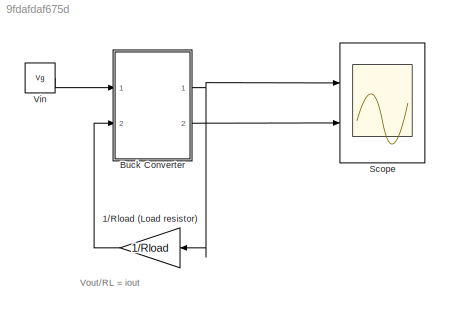
MODEL slx_9fdafdaf675d
KIND model
CONFIG AbsTol = auto
CONFIG FixedStep = auto
CONFIG MaxStep = 1/fs
CONFIG MinStep = auto
CONFIG RelTol = 1/fs
CONFIG SampleTimeConstraint = Unconstrained
CONFIG Solver = ode23tb
CONFIG SolverMode = Auto
CONFIG SolverName = ode23tb
CONFIG StartTime = 0.0
CONFIG StopTime = 0.5
BLOCK [Gain] 1//Rload (Load resistor)
  Gain = 1/Rload
  OutDataTypeStr = Inherit: Inherit via internal rule
  ParamDataTypeStr = Inherit: Inherit via internal rule
  SaturateOnIntegerOverflow = off
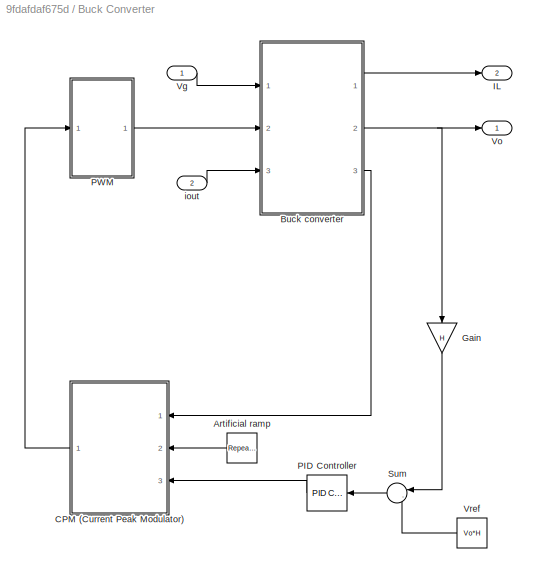
BLOCK [SubSystem] Buck Converter
  Ports = [2, 2]
  RequestExecContextInheritance = off
  Variant = off
BLOCK [Reference] Buck Converter/Artificial ramp  REF=simulink/Sources/Repeating
Sequence
  Ports = [0, 1]
  SourceBlock = simulink/Sources/Repeating\nSequence
  SourceType = Repeating table
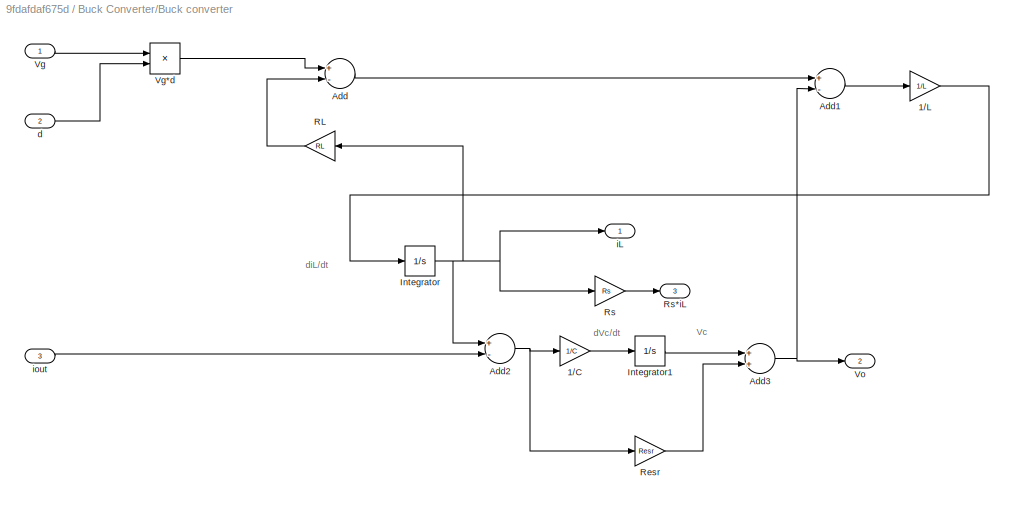
BLOCK [SubSystem] Buck Converter/Buck converter
  Ports = [3, 3]
  RequestExecContextInheritance = off
  Variant = off
BLOCK [Gain] Buck Converter/Buck converter/1//C
  Gain = 1/C
  OutDataTypeStr = Inherit: Inherit via internal rule
  ParamDataTypeStr = Inherit: Inherit via internal rule
  SaturateOnIntegerOverflow = off
BLOCK [Gain] Buck Converter/Buck converter/1//L
  Gain = 1/L
  OutDataTypeStr = Inherit: Inherit via internal rule
  ParamDataTypeStr = Inherit: Inherit via internal rule
  SaturateOnIntegerOverflow = off
BLOCK [Sum] Buck Converter/Buck converter/Add
  InputSameDT = off
  Inputs = +-
  OutDataTypeStr = Inherit: Inherit via internal rule
  Ports = [2, 1]
  SaturateOnIntegerOverflow = off
BLOCK [Sum] Buck Converter/Buck converter/Add1
  InputSameDT = off
  Inputs = +-
  OutDataTypeStr = Inherit: Inherit via internal rule
  Ports = [2, 1]
  SaturateOnIntegerOverflow = off
BLOCK [Sum] Buck Converter/Buck converter/Add2
  InputSameDT = off
  Inputs = +-
  OutDataTypeStr = Inherit: Inherit via internal rule
  Ports = [2, 1]
  SaturateOnIntegerOverflow = off
BLOCK [Sum] Buck Converter/Buck converter/Add3
  InputSameDT = off
  OutDataTypeStr = Inherit: Inherit via internal rule
  Ports = [2, 1]
  SaturateOnIntegerOverflow = off
BLOCK [Integrator] Buck Converter/Buck converter/Integrator
  Ports = [1, 1]
BLOCK [Integrator] Buck Converter/Buck converter/Integrator1
  Ports = [1, 1]
BLOCK [Gain] Buck Converter/Buck converter/RL
  Gain = RL
  OutDataTypeStr = Inherit: Inherit via internal rule
  ParamDataTypeStr = Inherit: Inherit via internal rule
  SaturateOnIntegerOverflow = off
BLOCK [Gain] Buck Converter/Buck converter/Resr
  Gain = Resr
  OutDataTypeStr = Inherit: Inherit via internal rule
  ParamDataTypeStr = Inherit: Inherit via internal rule
  SaturateOnIntegerOverflow = off
BLOCK [Gain] Buck Converter/Buck converter/Rs
  Gain = Rs
  OutDataTypeStr = Inherit: Inherit via internal rule
  ParamDataTypeStr = Inherit: Inherit via internal rule
  SaturateOnIntegerOverflow = off
BLOCK [Outport] Buck Converter/Buck converter/Rs*iL
  IconDisplay = Port number
  Port = 3
BLOCK [Inport] Buck Converter/Buck converter/Vg
  IconDisplay = Port number
BLOCK [Product] Buck Converter/Buck converter/Vg*d
  InputSameDT = off
  OutDataTypeStr = Inherit: Inherit via internal rule
  Ports = [2, 1]
  RndMeth = Floor
  SaturateOnIntegerOverflow = off
BLOCK [Outport] Buck Converter/Buck converter/Vo
  IconDisplay = Port number
  Port = 2
BLOCK [Inport] Buck Converter/Buck converter/d
  IconDisplay = Port number
  Port = 2
BLOCK [Outport] Buck Converter/Buck converter/iL
  IconDisplay = Port number
BLOCK [Inport] Buck Converter/Buck converter/iout
  IconDisplay = Port number
  Port = 3
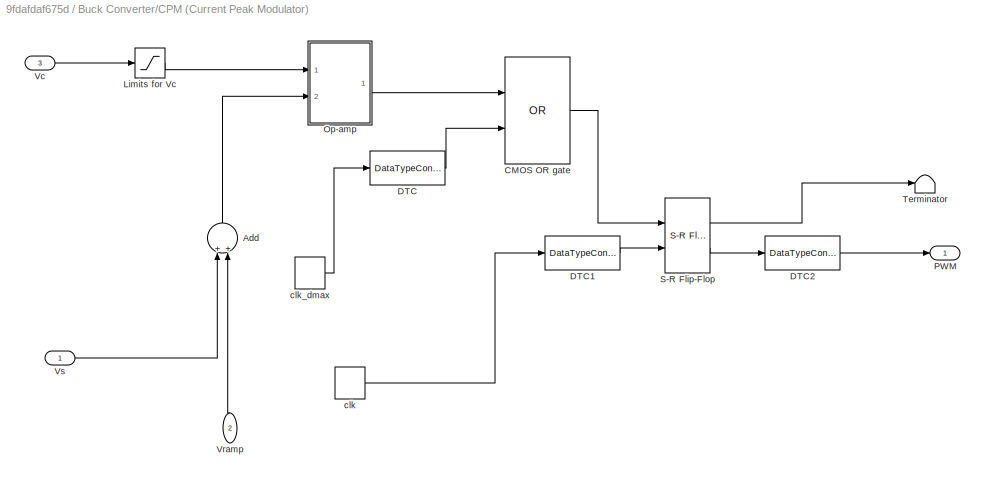
BLOCK [SubSystem] Buck Converter/CPM (Current Peak Modulator)
  Ports = [3, 1]
  RequestExecContextInheritance = off
  Variant = off
BLOCK [Sum] Buck Converter/CPM (Current Peak Modulator)/Add
  InputSameDT = off
  OutDataTypeStr = Inherit: Inherit via internal rule
  Ports = [2, 1]
  SaturateOnIntegerOverflow = off
BLOCK [Logic] Buck Converter/CPM (Current Peak Modulator)/CMOS OR gate
  AllPortsSameDT = off
  Operator = OR
  OutDataTypeStr = boolean
  Ports = [2, 1]
BLOCK [DataTypeConversion] Buck Converter/CPM (Current Peak Modulator)/DTC
  LockScale = on
  OutDataTypeStr = boolean
  RndMeth = Floor
BLOCK [DataTypeConversion] Buck Converter/CPM (Current Peak Modulator)/DTC1
  LockScale = on
  OutDataTypeStr = boolean
  RndMeth = Floor
BLOCK [DataTypeConversion] Buck Converter/CPM (Current Peak Modulator)/DTC2
  LockScale = on
  OutDataTypeStr = double
  RndMeth = Floor
BLOCK [Saturate] Buck Converter/CPM (Current Peak Modulator)/Limits for Vc
  InputPortMap = u0
  LowerLimit = 0
  Ports = [1, 1]
  UpperLimit = Vcmax+Voffset
  ZeroCross = off
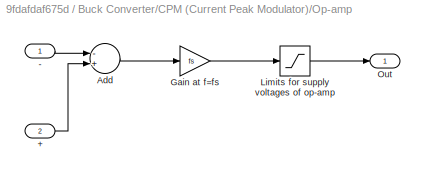
BLOCK [SubSystem] Buck Converter/CPM (Current Peak Modulator)/Op-amp
  Ports = [2, 1]
  RequestExecContextInheritance = off
  Variant = off
BLOCK [Inport] Buck Converter/CPM (Current Peak Modulator)/Op-amp/+
  IconDisplay = Port number
  Port = 2
BLOCK [Inport] Buck Converter/CPM (Current Peak Modulator)/Op-amp/-
  IconDisplay = Port number
BLOCK [Sum] Buck Converter/CPM (Current Peak Modulator)/Op-amp/Add
  InputSameDT = off
  Inputs = -+
  OutDataTypeStr = Inherit: Inherit via internal rule
  Ports = [2, 1]
  SaturateOnIntegerOverflow = off
BLOCK [Gain] Buck Converter/CPM (Current Peak Modulator)/Op-amp/Gain at f=fs
  Gain = fs
  OutDataTypeStr = Inherit: Inherit via internal rule
  ParamDataTypeStr = Inherit: Inherit via internal rule
  SaturateOnIntegerOverflow = off
BLOCK [Saturate] Buck Converter/CPM (Current Peak Modulator)/Op-amp/Limits for supply voltages of op-amp 
  InputPortMap = u0
  LowerLimit = 0
  Ports = [1, 1]
  UpperLimit = Vcc
BLOCK [Outport] Buck Converter/CPM (Current Peak Modulator)/Op-amp/Out
  IconDisplay = Port number
BLOCK [Outport] Buck Converter/CPM (Current Peak Modulator)/PWM
  IconDisplay = Port number
BLOCK [Reference] Buck Converter/CPM (Current Peak Modulator)/S-R Flip-Flop  REF=simulink_extras/Flip Flops/S-R
Flip-Flop
  Ports = [2, 2]
  SourceBlock = simulink_extras/Flip Flops/S-R\nFlip-Flop
  SourceType = SRFlipFlop
BLOCK [Terminator] Buck Converter/CPM (Current Peak Modulator)/Terminator
BLOCK [Inport] Buck Converter/CPM (Current Peak Modulator)/Vc
  IconDisplay = Port number
  Port = 3
BLOCK [Inport] Buck Converter/CPM (Current Peak Modulator)/Vramp
  IconDisplay = Port number
  Port = 2
BLOCK [Inport] Buck Converter/CPM (Current Peak Modulator)/Vs
  IconDisplay = Port number
BLOCK [DiscretePulseGenerator] Buck Converter/CPM (Current Peak Modulator)/clk
  Amplitude = 5
  Period = 1/fs
  Ports = [0, 1]
  PulseType = Time based
  PulseWidth = (Dmin+1e-10)*100
BLOCK [DiscretePulseGenerator] Buck Converter/CPM (Current Peak Modulator)/clk_dmax
  Amplitude = 5
  Period = 1/fs
  PhaseDelay = Dmax/fs
  Ports = [0, 1]
  PulseType = Time based
  PulseWidth = (1-Dmax)*100
BLOCK [Gain] Buck Converter/Gain
  Gain = H
  OutDataTypeStr = Inherit: Inherit via internal rule
  ParamDataTypeStr = Inherit: Inherit via internal rule
  SaturateOnIntegerOverflow = off
BLOCK [Outport] Buck Converter/IL
  IconDisplay = Port number
  Port = 2
BLOCK [Reference] Buck Converter/PID Controller  REF=simulink/Continuous/PID Controller
  Ports = [1, 1]
  SourceBlock = simulink/Continuous/PID Controller
  SourceType = PID 1dof
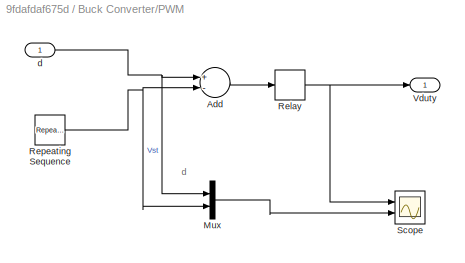
BLOCK [SubSystem] Buck Converter/PWM
  Ports = [1, 1]
  RequestExecContextInheritance = off
  Variant = off
BLOCK [Sum] Buck Converter/PWM/Add
  InputSameDT = off
  Inputs = +-
  OutDataTypeStr = Inherit: Inherit via internal rule
  Ports = [2, 1]
  SaturateOnIntegerOverflow = off
BLOCK [Mux] Buck Converter/PWM/Mux
  DisplayOption = bar
  Inputs = 2
  Ports = [2, 1]
BLOCK [Relay] Buck Converter/PWM/Relay
  InputProcessing = Elements as channels (sample based)
  ZeroCross = off
BLOCK [Reference] Buck Converter/PWM/Repeating Sequence  REF=simulink/Sources/Repeating
Sequence
  Ports = [0, 1]
  SourceBlock = simulink/Sources/Repeating\nSequence
  SourceType = Repeating table
BLOCK [Scope] Buck Converter/PWM/Scope
  NumInputPorts = 2
  Ports = [2]
  ScopeSpecificationString = Simulink.scopes.TimeScopeBlockCfg('CurrentConfiguration', extmgr.ConfigurationSet(extmgr.Configuration('Core','General UI',true),extmgr.Configuration('Core','Source UI',true),extmgr.Configuration('Sources','WiredSimulink',true),extmgr.Configuration('Visuals','Time Domain',true,'SerializedDisplays',{struct('MinYLimReal','-0.25557','MaxYLimReal','1.06293','YLabelReal','','MinYLimMag','0.00000','MaxY...<+2031ch>
BLOCK [Outport] Buck Converter/PWM/Vduty
  IconDisplay = Port number
BLOCK [Inport] Buck Converter/PWM/d
  IconDisplay = Port number
BLOCK [Sum] Buck Converter/Sum
  IconShape = round
  InputSameDT = off
  Inputs = |-+
  OutDataTypeStr = Inherit: Inherit via internal rule
  Ports = [2, 1]
  SaturateOnIntegerOverflow = off
BLOCK [Inport] Buck Converter/Vg
  IconDisplay = Port number
BLOCK [Outport] Buck Converter/Vo
  IconDisplay = Port number
BLOCK [Constant] Buck Converter/Vref
  Value = Vo*H
BLOCK [Inport] Buck Converter/iout
  IconDisplay = Port number
  Port = 2
BLOCK [Scope] Scope
  NumInputPorts = 2
  Ports = [2]
  ScopeSpecificationString = Simulink.scopes.TimeScopeBlockCfg('CurrentConfiguration', extmgr.ConfigurationSet(extmgr.Configuration('Core','General UI',true),extmgr.Configuration('Core','Source UI',true),extmgr.Configuration('Sources','WiredSimulink',true,'DataLoggingVariableName','ScopeData1'),extmgr.Configuration('Visuals','Time Domain',true,'SerializedDisplays',{struct('MinYLimReal','-6.23881','MaxYLimReal','56.14928','YLa...<+2078ch>
BLOCK [Constant] Vin
  Value = Vg
ANNOTATION (root): Vout/RL = iout
ANNOTATION Buck Converter/Buck converter: Vc
ANNOTATION Buck Converter/Buck converter: dVc/dt
ANNOTATION Buck Converter/Buck converter: diL/dt
ANNOTATION Buck Converter/PWM: d
LINE 1//Rload (Load resistor):1 -> Buck Converter:2
LINE Buck Converter/Artificial ramp:1 -> Buck Converter/CPM (Current Peak Modulator):2
LINE Buck Converter/Buck converter/1//C:1 -> Buck Converter/Buck converter/Integrator1:1
LINE Buck Converter/Buck converter/1//L:1 -> Buck Converter/Buck converter/Integrator:1
LINE Buck Converter/Buck converter/Add1:1 -> Buck Converter/Buck converter/1//L:1
NET Buck Converter/Buck converter/Add2:1 -> Buck Converter/Buck converter/1//C:1, Buck Converter/Buck converter/Resr:1
NET Buck Converter/Buck converter/Add3:1 -> Buck Converter/Buck converter/Add1:2, Buck Converter/Buck converter/Vo:1
LINE Buck Converter/Buck converter/Add:1 -> Buck Converter/Buck converter/Add1:1
LINE Buck Converter/Buck converter/Integrator1:1 -> Buck Converter/Buck converter/Add3:1
NET Buck Converter/Buck converter/Integrator:1 -> Buck Converter/Buck converter/Add2:1, Buck Converter/Buck converter/RL:1, Buck Converter/Buck converter/Rs:1, Buck Converter/Buck converter/iL:1
LINE Buck Converter/Buck converter/RL:1 -> Buck Converter/Buck converter/Add:2
LINE Buck Converter/Buck converter/Resr:1 -> Buck Converter/Buck converter/Add3:2
LINE Buck Converter/Buck converter/Rs:1 -> Buck Converter/Buck converter/Rs*iL:1
LINE Buck Converter/Buck converter/Vg*d:1 -> Buck Converter/Buck converter/Add:1
LINE Buck Converter/Buck converter/Vg:1 -> Buck Converter/Buck converter/Vg*d:1
LINE Buck Converter/Buck converter/d:1 -> Buck Converter/Buck converter/Vg*d:2
LINE Buck Converter/Buck converter/iout:1 -> Buck Converter/Buck converter/Add2:2
LINE Buck Converter/Buck converter:1 -> Buck Converter/IL:1
NET Buck Converter/Buck converter:2 -> Buck Converter/Gain:1, Buck Converter/Vo:1
LINE Buck Converter/Buck converter:3 -> Buck Converter/CPM (Current Peak Modulator):1
LINE Buck Converter/CPM (Current Peak Modulator)/Add:1 -> Buck Converter/CPM (Current Peak Modulator)/Op-amp:2
LINE Buck Converter/CPM (Current Peak Modulator)/CMOS OR gate:1 -> Buck Converter/CPM (Current Peak Modulator)/S-R Flip-Flop:1
LINE Buck Converter/CPM (Current Peak Modulator)/DTC1:1 -> Buck Converter/CPM (Current Peak Modulator)/S-R Flip-Flop:2
LINE Buck Converter/CPM (Current Peak Modulator)/DTC2:1 -> Buck Converter/CPM (Current Peak Modulator)/PWM:1
LINE Buck Converter/CPM (Current Peak Modulator)/DTC:1 -> Buck Converter/CPM (Current Peak Modulator)/CMOS OR gate:2
LINE Buck Converter/CPM (Current Peak Modulator)/Limits for Vc:1 -> Buck Converter/CPM (Current Peak Modulator)/Op-amp:1
LINE Buck Converter/CPM (Current Peak Modulator)/Op-amp/+:1 -> Buck Converter/CPM (Current Peak Modulator)/Op-amp/Add:2
LINE Buck Converter/CPM (Current Peak Modulator)/Op-amp/-:1 -> Buck Converter/CPM (Current Peak Modulator)/Op-amp/Add:1
LINE Buck Converter/CPM (Current Peak Modulator)/Op-amp/Add:1 -> Buck Converter/CPM (Current Peak Modulator)/Op-amp/Gain at f=fs:1
LINE Buck Converter/CPM (Current Peak Modulator)/Op-amp/Gain at f=fs:1 -> Buck Converter/CPM (Current Peak Modulator)/Op-amp/Limits for supply voltages of op-amp :1
LINE Buck Converter/CPM (Current Peak Modulator)/Op-amp/Limits for supply voltages of op-amp :1 -> Buck Converter/CPM (Current Peak Modulator)/Op-amp/Out:1
LINE Buck Converter/CPM (Current Peak Modulator)/Op-amp:1 -> Buck Converter/CPM (Current Peak Modulator)/CMOS OR gate:1
LINE Buck Converter/CPM (Current Peak Modulator)/S-R Flip-Flop:1 -> Buck Converter/CPM (Current Peak Modulator)/Terminator:1
LINE Buck Converter/CPM (Current Peak Modulator)/S-R Flip-Flop:2 -> Buck Converter/CPM (Current Peak Modulator)/DTC2:1
LINE Buck Converter/CPM (Current Peak Modulator)/Vc:1 -> Buck Converter/CPM (Current Peak Modulator)/Limits for Vc:1
LINE Buck Converter/CPM (Current Peak Modulator)/Vramp:1 -> Buck Converter/CPM (Current Peak Modulator)/Add:2
LINE Buck Converter/CPM (Current Peak Modulator)/Vs:1 -> Buck Converter/CPM (Current Peak Modulator)/Add:1
LINE Buck Converter/CPM (Current Peak Modulator)/clk:1 -> Buck Converter/CPM (Current Peak Modulator)/DTC1:1
LINE Buck Converter/CPM (Current Peak Modulator)/clk_dmax:1 -> Buck Converter/CPM (Current Peak Modulator)/DTC:1
LINE Buck Converter/CPM (Current Peak Modulator):1 -> Buck Converter/PWM:1
LINE Buck Converter/Gain:1 -> Buck Converter/Sum:1
LINE Buck Converter/PID Controller:1 -> Buck Converter/CPM (Current Peak Modulator):3
LINE Buck Converter/PWM/Add:1 -> Buck Converter/PWM/Relay:1
LINE Buck Converter/PWM/Mux:1 -> Buck Converter/PWM/Scope:2
NET Buck Converter/PWM/Relay:1 -> Buck Converter/PWM/Scope:1, Buck Converter/PWM/Vduty:1
NET Buck Converter/PWM/Repeating Sequence:1 -> Buck Converter/PWM/Add:2, Buck Converter/PWM/Mux:2
NET Buck Converter/PWM/d:1 -> Buck Converter/PWM/Add:1, Buck Converter/PWM/Mux:1
LINE Buck Converter/PWM:1 -> Buck Converter/Buck converter:2
LINE Buck Converter/Sum:1 -> Buck Converter/PID Controller:1
LINE Buck Converter/Vg:1 -> Buck Converter/Buck converter:1
LINE Buck Converter/Vref:1 -> Buck Converter/Sum:2
LINE Buck Converter/iout:1 -> Buck Converter/Buck converter:3
NET Buck Converter:1 -> 1//Rload (Load resistor):1, Scope:1
LINE Buck Converter:2 -> Scope:2
LINE Vin:1 -> Buck Converter:1
note: NET lines group one-source signal fan-out (src -> all destinations, sorted); 1:1 wires keep LINE
